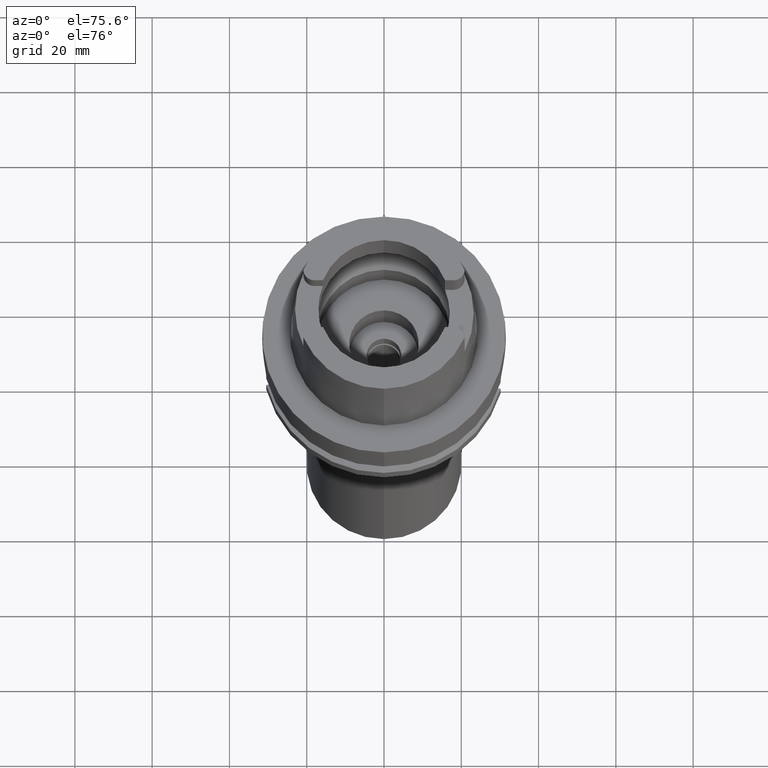
[diagram: clean part render]
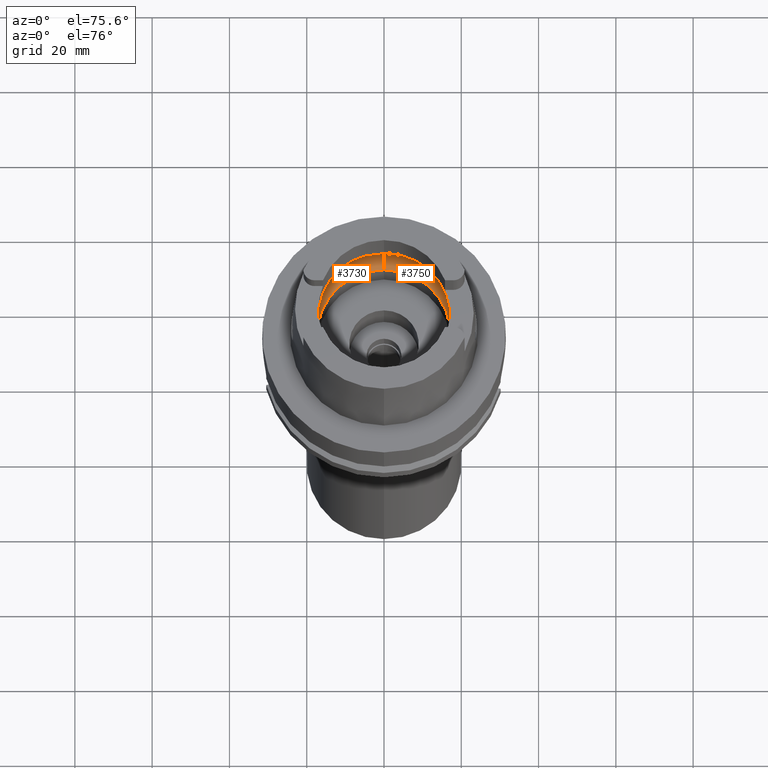
[diagram: same view with one multi-face feature highlighted, each face labeled with its STEP entity id]
A machine part, auxiliary view. The highlighted faces form ONE feature: a constant-radius fillet chain: 2 tangent blend faces with common blend radius 8 mm. The faces share edges in the B-rep.
Their STEP definitions:
[1] entity #3750 (Torus):
#575=CARTESIAN_POINT('',(0.E0,-1.2E1,6.186348233825E0));
#576=DIRECTION('',(-1.E0,0.E0,0.E0));
#577=DIRECTION('',(0.E0,-6.5625E-1,-7.545435292281E-1));
#578=AXIS2_PLACEMENT_3D('',#575,#576,#577);
#591=CARTESIAN_POINT('',(1.994501428476E1,0.E0,5.25E0));
#592=CARTESIAN_POINT('',(1.994501428476E1,-3.022957154465E-1,5.25E0));
#593=CARTESIAN_POINT('',(1.994018609693E1,-9.060474356403E-1,5.323296439589E0));
#594=CARTESIAN_POINT('',(1.991331550025E1,-1.759139202252E0,5.647061182125E0));
#595=CARTESIAN_POINT('',(1.987369610543E1,-2.255438229266E0,5.989294685574E0));
#596=CARTESIAN_POINT('',(1.984575864666E1,-2.479085262491E0,6.186348233825E0));
#601=CARTESIAN_POINT('',(0.E0,0.E0,6.186348233825E0));
#602=DIRECTION('',(0.E0,0.E0,-1.E0));
#603=DIRECTION('',(9.922879323328E-1,-1.239542631245E-1,0.E0));
#604=AXIS2_PLACEMENT_3D('',#601,#602,#603);
#609=CARTESIAN_POINT('',(0.E0,0.E0,1.500000000001E-1));
#610=DIRECTION('',(0.E0,0.E0,1.E0));
#611=DIRECTION('',(0.E0,-1.E0,0.E0));
#612=AXIS2_PLACEMENT_3D('',#609,#610,#611);
#617=CARTESIAN_POINT('',(0.E0,1.2E1,6.186348233825E0));
#618=DIRECTION('',(1.E0,0.E0,0.E0));
#619=DIRECTION('',(0.E0,6.5625E-1,-7.545435292281E-1));
#620=AXIS2_PLACEMENT_3D('',#617,#618,#619);
#625=CARTESIAN_POINT('',(0.E0,0.E0,6.186348233825E0));
#626=DIRECTION('',(0.E0,0.E0,-1.E0));
#627=DIRECTION('',(0.E0,1.E0,0.E0));
#628=AXIS2_PLACEMENT_3D('',#625,#626,#627);
#633=CARTESIAN_POINT('',(1.984575864666E1,2.479085262491E0,6.186348233825E0));
#634=CARTESIAN_POINT('',(1.987369683552E1,2.255432384732E0,5.989289536004E0));
#635=CARTESIAN_POINT('',(1.991331633330E1,1.759123026949E0,5.647052493715E0));
#636=CARTESIAN_POINT('',(1.994018619685E1,9.060366292765E-1,5.323294636829E0));
#637=CARTESIAN_POINT('',(1.994501428476E1,3.022911403854E-1,5.25E0));
#638=CARTESIAN_POINT('',(1.994501428476E1,0.E0,5.25E0));
#650=CARTESIAN_POINT('',(1.984575864666E1,-2.479085262491E0,6.186348233825E0));
#677=CARTESIAN_POINT('',(1.984575864666E1,2.479085262491E0,6.186348233825E0));
#3034=CARTESIAN_POINT('',(0.E0,-2.E1,6.186348233825E0));
#3035=VERTEX_POINT('',#3034);
#3036=CARTESIAN_POINT('',(0.E0,2.E1,6.186348233825E0));
#3037=VERTEX_POINT('',#3036);
#3042=VERTEX_POINT('',#650);
#3044=VERTEX_POINT('',#591);
#3045=VERTEX_POINT('',#677);
#3046=CARTESIAN_POINT('',(0.E0,1.725E1,1.500000000001E-1));
#3047=VERTEX_POINT('',#3046);
#3048=CARTESIAN_POINT('',(0.E0,-1.725E1,1.500000000001E-1));
#3049=VERTEX_POINT('',#3048);
#3731=CARTESIAN_POINT('',(0.E0,0.E0,6.186348233825E0));
#3732=DIRECTION('',(0.E0,0.E0,1.E0));
#3733=DIRECTION('',(0.E0,1.E0,0.E0));
#3734=AXIS2_PLACEMENT_3D('',#3731,#3732,#3733);
#3735=TOROIDAL_SURFACE('',#3734,1.2E1,8.E0);
#3737=ORIENTED_EDGE('',*,*,#3736,.T.);
#3739=ORIENTED_EDGE('',*,*,#3738,.T.);
#3740=ORIENTED_EDGE('',*,*,#3725,.F.);
#3742=ORIENTED_EDGE('',*,*,#3741,.T.);
#3743=ORIENTED_EDGE('',*,*,#3721,.T.);
#3745=ORIENTED_EDGE('',*,*,#3744,.T.);
#3747=ORIENTED_EDGE('',*,*,#3746,.T.);
#3748=EDGE_LOOP('',(#3737,#3739,#3740,#3742,#3743,#3745,#3747));
#3749=FACE_OUTER_BOUND('',#3748,.F.);
#579=CIRCLE('',#578,8.E0);
#597=B_SPLINE_CURVE_WITH_KNOTS('',3,(#591,#592,#593,#594,#595,#596),
.UNSPECIFIED.,.F.,.F.,(4,1,1,4),(0.E0,3.333333333333E-1,6.666666666667E-1,1.E0),
.UNSPECIFIED.);
#605=CIRCLE('',#604,2.E1);
#613=CIRCLE('',#612,1.725E1);
#621=CIRCLE('',#620,8.E0);
#629=CIRCLE('',#628,2.E1);
#639=B_SPLINE_CURVE_WITH_KNOTS('',3,(#633,#634,#635,#636,#637,#638),
.UNSPECIFIED.,.F.,.F.,(4,1,1,4),(0.E0,3.333333333333E-1,6.666666666667E-1,1.E0),
.UNSPECIFIED.);
#3721=EDGE_CURVE('',#3047,#3037,#621,.T.);
#3725=EDGE_CURVE('',#3049,#3035,#579,.T.);
#3736=EDGE_CURVE('',#3044,#3042,#597,.T.);
#3738=EDGE_CURVE('',#3042,#3035,#605,.T.);
#3741=EDGE_CURVE('',#3049,#3047,#613,.T.);
#3744=EDGE_CURVE('',#3037,#3045,#629,.T.);
#3746=EDGE_CURVE('',#3045,#3044,#639,.T.);
#3750=ADVANCED_FACE('',(#3749),#3735,.F.);
[2] entity #3730 (Torus):
#497=CARTESIAN_POINT('',(-1.984575864666E1,-2.479085262491E0,6.186348233825E0));
#539=CARTESIAN_POINT('',(-1.984575864666E1,-2.479085262491E0,6.186348233825E0));
#540=CARTESIAN_POINT('',(-1.987369637762E1,-2.255436050342E0,5.989292765742E0));
#541=CARTESIAN_POINT('',(-1.991331581871E1,-1.759133185383E0,5.647057889337E0));
#542=CARTESIAN_POINT('',(-1.994018615095E1,-9.060425565455E-1,
5.323295534197E0));
#543=CARTESIAN_POINT('',(-1.994501428476E1,-3.022936309386E-1,5.25E0));
#544=CARTESIAN_POINT('',(-1.994501428476E1,0.E0,5.25E0));
#549=CARTESIAN_POINT('',(-1.994501428476E1,0.E0,5.25E0));
#550=CARTESIAN_POINT('',(-1.994501428476E1,3.022931930043E-1,5.25E0));
#551=CARTESIAN_POINT('',(-1.994018614423E1,9.060414364937E-1,5.323295523152E0));
#552=CARTESIAN_POINT('',(-1.991331601589E1,1.759129035713E0,5.647055777419E0));
#553=CARTESIAN_POINT('',(-1.987369656375E1,2.255434560347E0,5.989291452920E0));
#554=CARTESIAN_POINT('',(-1.984575864666E1,2.479085262491E0,6.186348233825E0));
#559=CARTESIAN_POINT('',(0.E0,0.E0,6.186348233825E0));
#560=DIRECTION('',(0.E0,0.E0,-1.E0));
#561=DIRECTION('',(-9.922879323328E-1,1.239542631245E-1,0.E0));
#562=AXIS2_PLACEMENT_3D('',#559,#560,#561);
#567=CARTESIAN_POINT('',(0.E0,0.E0,1.500000000001E-1));
#568=DIRECTION('',(0.E0,0.E0,1.E0));
#569=DIRECTION('',(0.E0,1.E0,0.E0));
#570=AXIS2_PLACEMENT_3D('',#567,#568,#569);
#575=CARTESIAN_POINT('',(0.E0,-1.2E1,6.186348233825E0));
#576=DIRECTION('',(-1.E0,0.E0,0.E0));
#577=DIRECTION('',(0.E0,-6.5625E-1,-7.545435292281E-1));
#578=AXIS2_PLACEMENT_3D('',#575,#576,#577);
#583=CARTESIAN_POINT('',(0.E0,0.E0,6.186348233825E0));
#584=DIRECTION('',(0.E0,0.E0,-1.E0));
#585=DIRECTION('',(0.E0,-1.E0,0.E0));
#586=AXIS2_PLACEMENT_3D('',#583,#584,#585);
#617=CARTESIAN_POINT('',(0.E0,1.2E1,6.186348233825E0));
#618=DIRECTION('',(1.E0,0.E0,0.E0));
#619=DIRECTION('',(0.E0,6.5625E-1,-7.545435292281E-1));
#620=AXIS2_PLACEMENT_3D('',#617,#618,#619);
#3033=VERTEX_POINT('',#497);
#3034=CARTESIAN_POINT('',(0.E0,-2.E1,6.186348233825E0));
#3035=VERTEX_POINT('',#3034);
#3036=CARTESIAN_POINT('',(0.E0,2.E1,6.186348233825E0));
#3037=VERTEX_POINT('',#3036);
#3038=CARTESIAN_POINT('',(-1.984575864666E1,2.479085262490E0,6.186348233825E0));
#3039=VERTEX_POINT('',#3038);
#3040=CARTESIAN_POINT('',(-1.994501428476E1,0.E0,5.25E0));
#3041=VERTEX_POINT('',#3040);
#3046=CARTESIAN_POINT('',(0.E0,1.725E1,1.500000000001E-1));
#3047=VERTEX_POINT('',#3046);
#3048=CARTESIAN_POINT('',(0.E0,-1.725E1,1.500000000001E-1));
#3049=VERTEX_POINT('',#3048);
#3713=CARTESIAN_POINT('',(0.E0,0.E0,6.186348233825E0));
#3714=DIRECTION('',(0.E0,0.E0,1.E0));
#3715=DIRECTION('',(0.E0,1.E0,0.E0));
#3716=AXIS2_PLACEMENT_3D('',#3713,#3714,#3715);
#3717=TOROIDAL_SURFACE('',#3716,1.2E1,8.E0);
#3718=ORIENTED_EDGE('',*,*,#3694,.T.);
#3719=ORIENTED_EDGE('',*,*,#3705,.T.);
#3720=ORIENTED_EDGE('',*,*,#3676,.T.);
#3722=ORIENTED_EDGE('',*,*,#3721,.F.);
#3724=ORIENTED_EDGE('',*,*,#3723,.T.);
#3726=ORIENTED_EDGE('',*,*,#3725,.T.);
#3727=ORIENTED_EDGE('',*,*,#3669,.T.);
#3728=EDGE_LOOP('',(#3718,#3719,#3720,#3722,#3724,#3726,#3727));
#3729=FACE_OUTER_BOUND('',#3728,.F.);
#545=B_SPLINE_CURVE_WITH_KNOTS('',3,(#539,#540,#541,#542,#543,#544),
.UNSPECIFIED.,.F.,.F.,(4,1,1,4),(0.E0,3.333333333333E-1,6.666666666667E-1,1.E0),
.UNSPECIFIED.);
#555=B_SPLINE_CURVE_WITH_KNOTS('',3,(#549,#550,#551,#552,#553,#554),
.UNSPECIFIED.,.F.,.F.,(4,1,1,4),(0.E0,3.333333333333E-1,6.666666666667E-1,1.E0),
.UNSPECIFIED.);
#563=CIRCLE('',#562,2.E1);
#571=CIRCLE('',#570,1.725E1);
#579=CIRCLE('',#578,8.E0);
#587=CIRCLE('',#586,2.E1);
#621=CIRCLE('',#620,8.E0);
#3669=EDGE_CURVE('',#3035,#3033,#587,.T.);
#3676=EDGE_CURVE('',#3039,#3037,#563,.T.);
#3694=EDGE_CURVE('',#3033,#3041,#545,.T.);
#3705=EDGE_CURVE('',#3041,#3039,#555,.T.);
#3721=EDGE_CURVE('',#3047,#3037,#621,.T.);
#3723=EDGE_CURVE('',#3047,#3049,#571,.T.);
#3725=EDGE_CURVE('',#3049,#3035,#579,.T.);
#3730=ADVANCED_FACE('',(#3729),#3717,.F.);